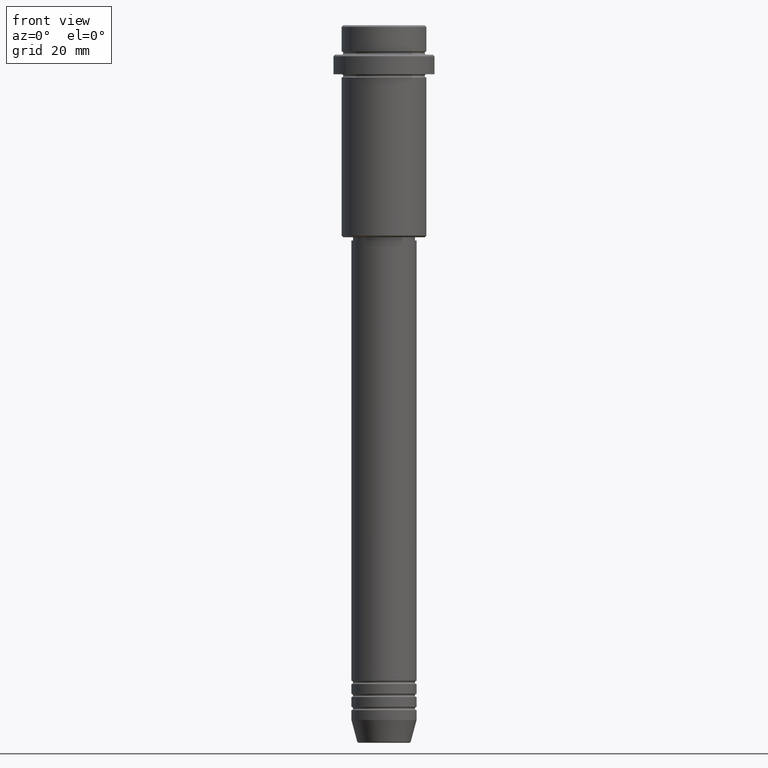
[diagram: clean part render]
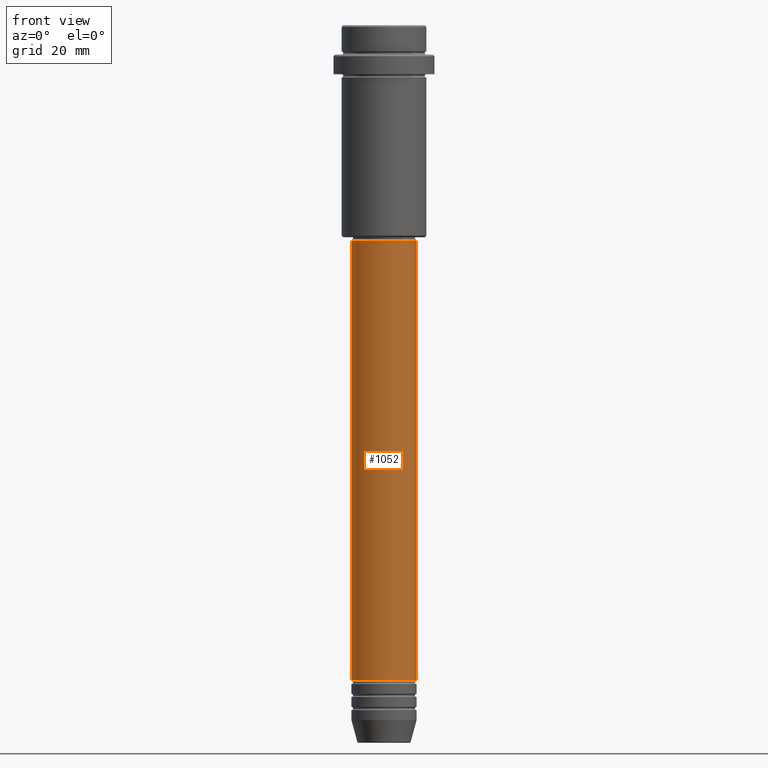
[diagram: same view with one face highlighted and labeled with its STEP entity id]
A machine part, front view. The second image highlights one B-rep face of the part: STEP entity #1052.
In plain terms, the highlighted cylindrical surface (edge-blend (fillet) strip) has radius 10 mm, axis along (-0, -0, 1).
Its self-contained STEP definition (entity closure, byte-faithful):
#19 = CARTESIAN_POINT ( 'NONE',  ( -10.00000000000000178, 1.224646799147353454E-15, -65.99999999999997158 ) ) ;
#51 = CARTESIAN_POINT ( 'NONE',  ( 0.000000000000000000, 0.000000000000000000, -65.99999999999997158 ) ) ;
#57 = ORIENTED_EDGE ( 'NONE', *, *, #1213, .T. ) ;
#84 = CIRCLE ( 'NONE', #954, 10.00000000000000178 ) ;
#107 = ORIENTED_EDGE ( 'NONE', *, *, #1258, .F. ) ;
#111 = VERTEX_POINT ( 'NONE', #173 ) ;
#113 = DIRECTION ( 'NONE',  ( -0.000000000000000000, -0.000000000000000000, 1.000000000000000000 ) ) ;
#173 = CARTESIAN_POINT ( 'NONE',  ( 10.00000000000000178, 0.000000000000000000, -65.99999999999997158 ) ) ;
#205 = CARTESIAN_POINT ( 'NONE',  ( 10.00000000000000178, 0.000000000000000000, 0.000000000000000000 ) ) ;
#211 = EDGE_CURVE ( 'NONE', #555, #111, #1294, .T. ) ;
#291 = FACE_OUTER_BOUND ( 'NONE', #807, .T. ) ;
#358 = VERTEX_POINT ( 'NONE', #1323 ) ;
#369 = DIRECTION ( 'NONE',  ( 1.000000000000000000, 0.000000000000000000, 0.000000000000000000 ) ) ;
#388 = DIRECTION ( 'NONE',  ( -0.000000000000000000, -0.000000000000000000, 1.000000000000000000 ) ) ;
#407 = DIRECTION ( 'NONE',  ( -0.000000000000000000, -0.000000000000000000, 1.000000000000000000 ) ) ;
#437 = VECTOR ( 'NONE', #388, 1000.000000000000000 ) ;
#520 = CARTESIAN_POINT ( 'NONE',  ( 0.000000000000000000, 0.000000000000000000, -200.9999999999998579 ) ) ;
#523 = DIRECTION ( 'NONE',  ( 1.000000000000000000, 0.000000000000000000, 0.000000000000000000 ) ) ;
#555 = VERTEX_POINT ( 'NONE', #960 ) ;
#807 = EDGE_LOOP ( 'NONE', ( #107, #57, #1044, #1040 ) ) ;
#810 = VECTOR ( 'NONE', #113, 1000.000000000000000 ) ;
#907 = EDGE_CURVE ( 'NONE', #1350, #111, #84, .T. ) ;
#954 = AXIS2_PLACEMENT_3D ( 'NONE', #51, #1135, #369 ) ;
#955 = AXIS2_PLACEMENT_3D ( 'NONE', #1368, #407, #523 ) ;
#956 = CARTESIAN_POINT ( 'NONE',  ( -10.00000000000000178, 1.224646799147353454E-15, 0.000000000000000000 ) ) ;
#960 = CARTESIAN_POINT ( 'NONE',  ( 10.00000000000000000, 0.000000000000000000, -200.9999999999998579 ) ) ;
#1028 = AXIS2_PLACEMENT_3D ( 'NONE', #520, #1354, #1144 ) ;
#1040 = ORIENTED_EDGE ( 'NONE', *, *, #907, .F. ) ;
#1044 = ORIENTED_EDGE ( 'NONE', *, *, #211, .T. ) ;
#1048 = CIRCLE ( 'NONE', #1028, 10.00000000000000000 ) ;
#1052 = ADVANCED_FACE ( 'NONE', ( #291 ), #1082, .T. ) ;
#1082 = CYLINDRICAL_SURFACE ( 'NONE', #955, 10.00000000000000178 ) ;
#1135 = DIRECTION ( 'NONE',  ( -0.000000000000000000, -0.000000000000000000, 1.000000000000000000 ) ) ;
#1144 = DIRECTION ( 'NONE',  ( 1.000000000000000000, 0.000000000000000000, 0.000000000000000000 ) ) ;
#1213 = EDGE_CURVE ( 'NONE', #358, #555, #1048, .T. ) ;
#1258 = EDGE_CURVE ( 'NONE', #358, #1350, #1366, .T. ) ;
#1294 = LINE ( 'NONE', #205, #810 ) ;
#1323 = CARTESIAN_POINT ( 'NONE',  ( -10.00000000000000000, 1.224646799147353256E-15, -200.9999999999998579 ) ) ;
#1350 = VERTEX_POINT ( 'NONE', #19 ) ;
#1354 = DIRECTION ( 'NONE',  ( -0.000000000000000000, -0.000000000000000000, 1.000000000000000000 ) ) ;
#1366 = LINE ( 'NONE', #956, #437 ) ;
#1368 = CARTESIAN_POINT ( 'NONE',  ( 0.000000000000000000, 0.000000000000000000, 0.000000000000000000 ) ) ;